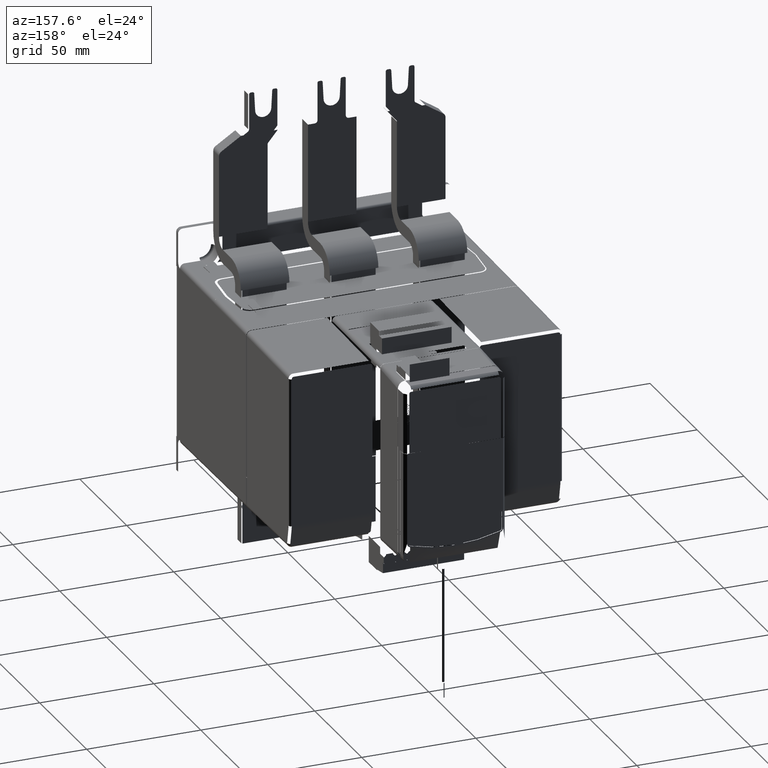
[diagram: clean part render]
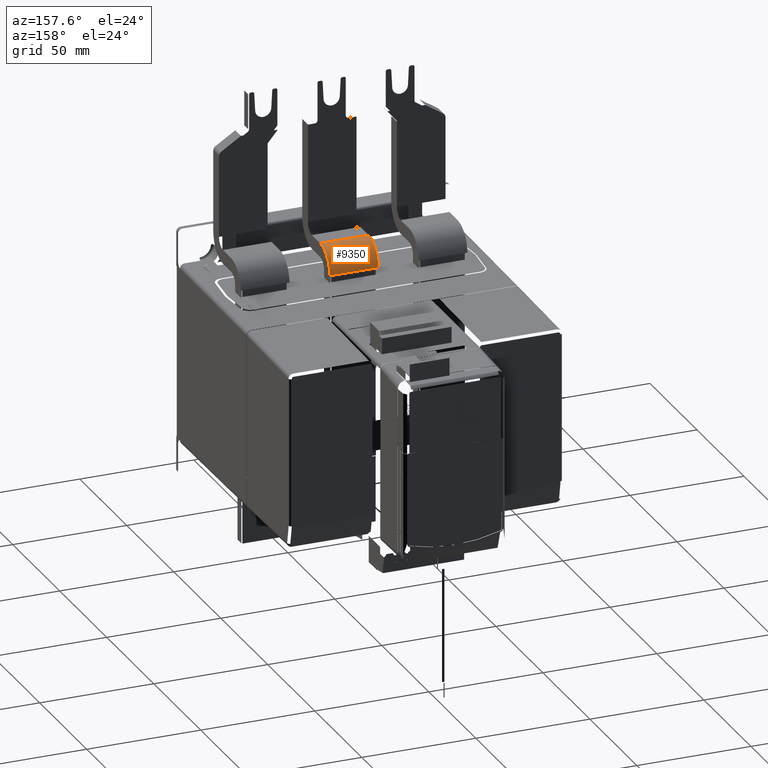
[diagram: same view with one face highlighted and labeled with its STEP entity id]
A machine part, auxiliary view. The second image highlights one B-rep face of the part: STEP entity #9350.
In plain terms, the highlighted cylindrical surface (edge-blend (fillet) strip) has radius 10.2 mm, axis along (1, 0, 0).
Its self-contained STEP definition (entity closure, byte-faithful):
#9118=CARTESIAN_POINT('',(4.192913385827E-1,-1.562795275591E0,
1.691929133858E0));
#9119=DIRECTION('',(1.E0,0.E0,0.E0));
#9120=DIRECTION('',(0.E0,1.E0,1.327043050611E-14));
#9121=AXIS2_PLACEMENT_3D('',#9118,#9119,#9120);
#9143=CARTESIAN_POINT('',(-4.192913385827E-1,-1.562795275591E0,
1.691929133858E0));
#9144=DIRECTION('',(1.E0,0.E0,0.E0));
#9145=DIRECTION('',(0.E0,1.E0,0.E0));
#9146=AXIS2_PLACEMENT_3D('',#9143,#9144,#9145);
#9191=DIRECTION('',(1.E0,0.E0,0.E0));
#9192=VECTOR('',#9191,8.385826771654E-1);
#9193=CARTESIAN_POINT('',(-4.192913385827E-1,-1.161220472441E0,
1.691929133858E0));
#9194=LINE('',#9193,#9192);
#9199=DIRECTION('',(-1.E0,0.E0,0.E0));
#9200=VECTOR('',#9199,8.385826771654E-1);
#9201=CARTESIAN_POINT('',(4.192913385827E-1,-1.562795275591E0,
2.093503937008E0));
#9202=LINE('',#9201,#9200);
#9219=CARTESIAN_POINT('',(4.192913385827E-1,-1.562795275591E0,
2.093503937008E0));
#9221=VERTEX_POINT('',#9219);
#9235=CARTESIAN_POINT('',(-4.192913385827E-1,-1.562795275591E0,
2.093503937008E0));
#9237=VERTEX_POINT('',#9235);
#9251=CARTESIAN_POINT('',(4.192913385827E-1,-1.161220472441E0,
1.691929133858E0));
#9252=VERTEX_POINT('',#9251);
#9253=CARTESIAN_POINT('',(-4.192913385827E-1,-1.161220472441E0,
1.691929133858E0));
#9254=VERTEX_POINT('',#9253);
#9337=CARTESIAN_POINT('',(4.192913385827E-1,-1.562795275591E0,
1.691929133858E0));
#9338=DIRECTION('',(1.E0,0.E0,0.E0));
#9339=DIRECTION('',(0.E0,-1.E0,0.E0));
#9340=AXIS2_PLACEMENT_3D('',#9337,#9338,#9339);
#9341=CYLINDRICAL_SURFACE('',#9340,4.015748031496E-1);
#9342=ORIENTED_EDGE('',*,*,#9282,.T.);
#9344=ORIENTED_EDGE('',*,*,#9343,.T.);
#9345=ORIENTED_EDGE('',*,*,#9313,.F.);
#9347=ORIENTED_EDGE('',*,*,#9346,.T.);
#9348=EDGE_LOOP('',(#9342,#9344,#9345,#9347));
#9349=FACE_OUTER_BOUND('',#9348,.F.);
#9350=ADVANCED_FACE('',(#9349),#9341,.T.);
#9122=CIRCLE('',#9121,4.015748031496E-1);
#9147=CIRCLE('',#9146,4.015748031496E-1);
#9282=EDGE_CURVE('',#9252,#9221,#9122,.T.);
#9313=EDGE_CURVE('',#9254,#9237,#9147,.T.);
#9343=EDGE_CURVE('',#9221,#9237,#9202,.T.);
#9346=EDGE_CURVE('',#9254,#9252,#9194,.T.);